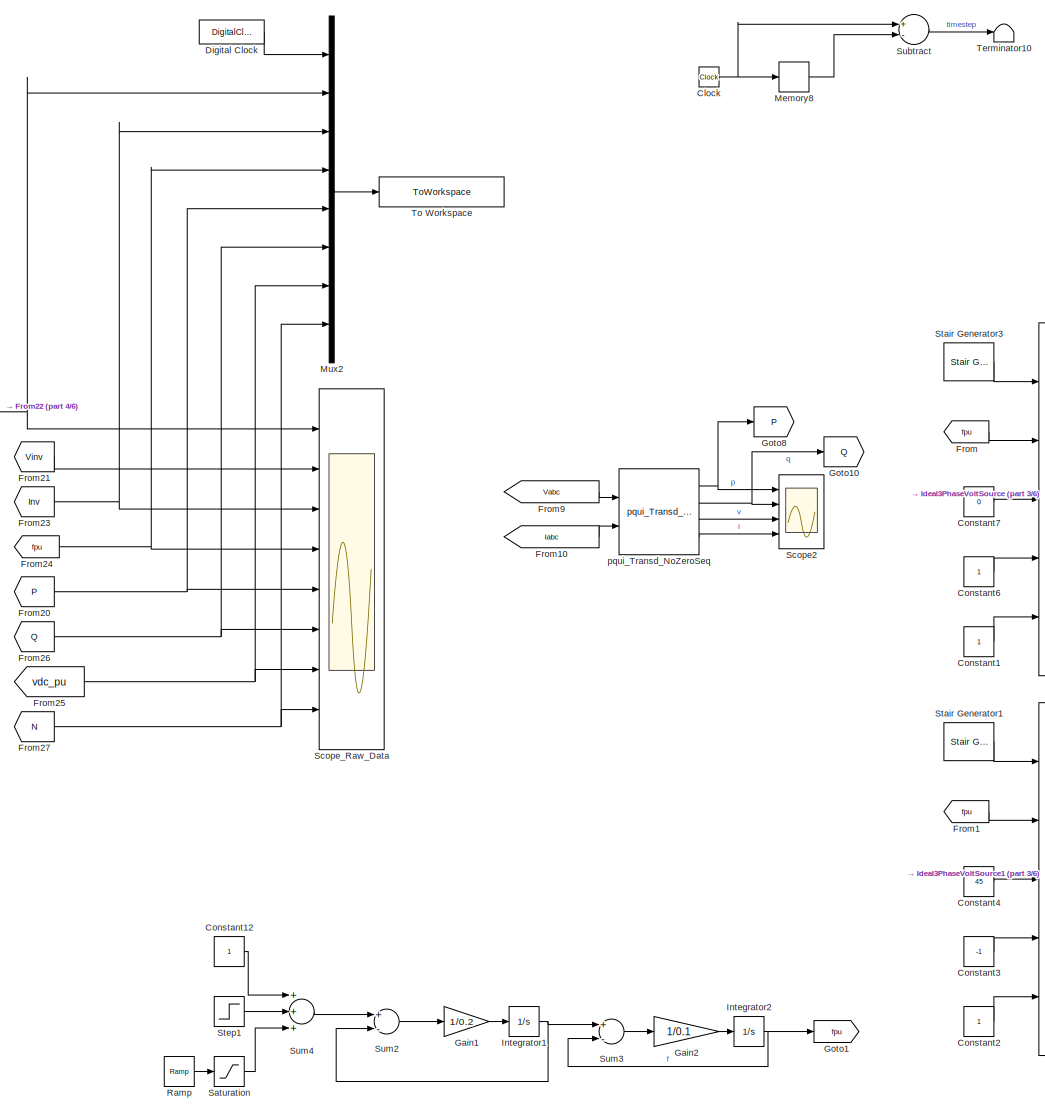
[diagram: root canvas - part 1/6, top left region]
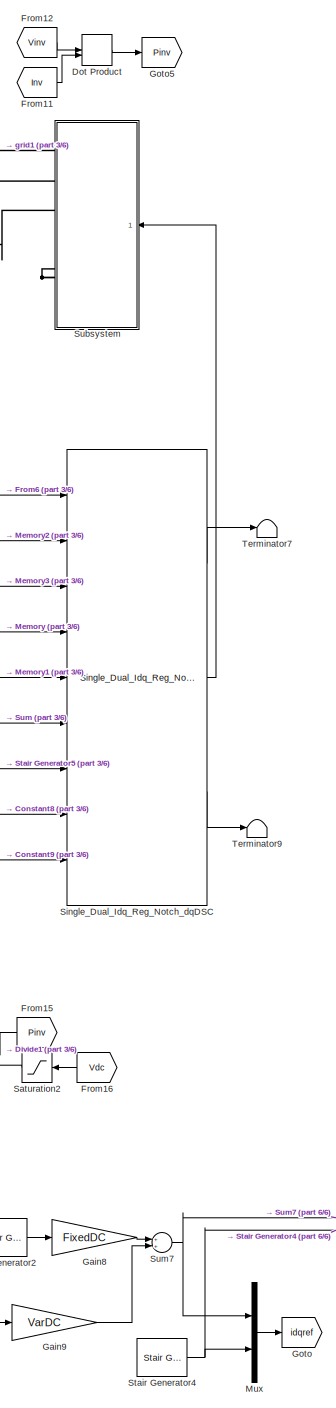
[diagram: root canvas - part 2/6, right side, full height]
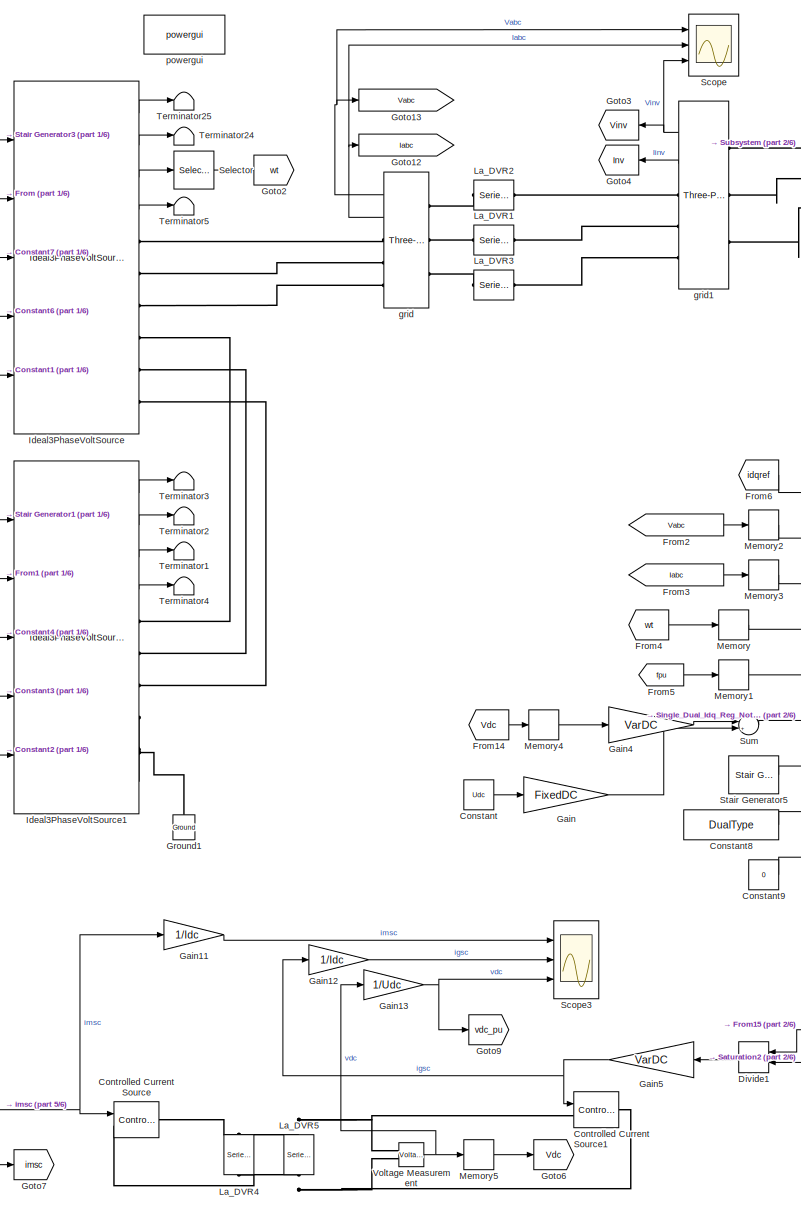
[diagram: root canvas - part 3/6, central region]
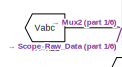
[diagram: root canvas - part 4/6, top left region]
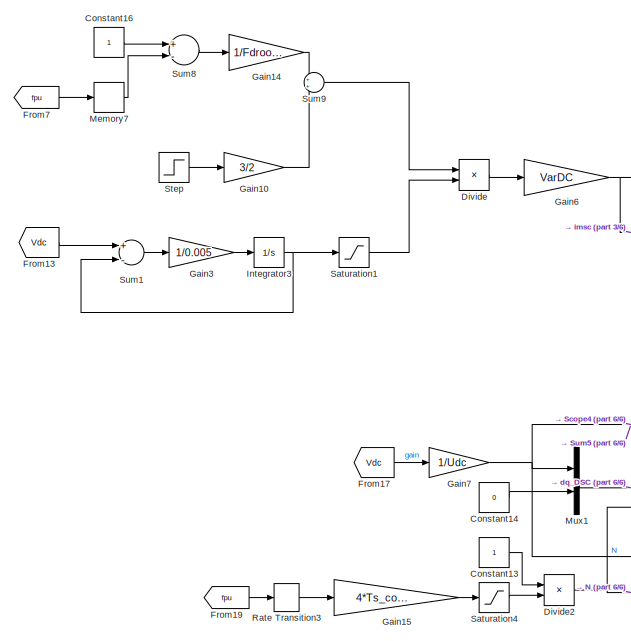
[diagram: root canvas - part 5/6, bottom left region]
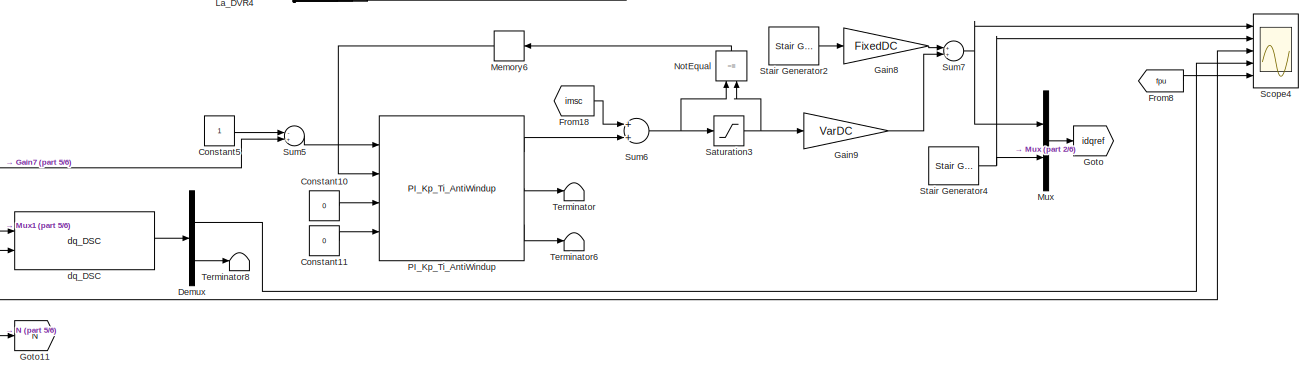
[diagram: root canvas - part 6/6, bottom right region]
MODEL slx_67183f705702
KIND model
CONFIG AbsTol = 2e-5
CONFIG EnableMultiTasking = off
CONFIG FixedStep = Ts
CONFIG MaxStep = auto
CONFIG MinStep = auto
CONFIG RelTol = 1e-3
CONFIG SampleTimeConstraint = Unconstrained
CONFIG Solver = ode8
CONFIG SolverName = ode8
CONFIG StartTime = 0.0
CONFIG StopTime = Ttot
BLOCK [Clock] Clock
  Commented = on
BLOCK [Constant] Constant
  Value = Udc
BLOCK [Constant] Constant1
BLOCK [Constant] Constant10
  Value = 0
BLOCK [Constant] Constant11
  Value = 0
BLOCK [Constant] Constant12
BLOCK [Constant] Constant13
BLOCK [Constant] Constant14
  Value = 0
BLOCK [Constant] Constant16
BLOCK [Constant] Constant2
BLOCK [Constant] Constant3
  Value = -1
BLOCK [Constant] Constant4
  Value = 45
BLOCK [Constant] Constant5
BLOCK [Constant] Constant6
BLOCK [Constant] Constant7
  Value = 0
BLOCK [Constant] Constant8
  Value = DualType
BLOCK [Constant] Constant9
  Value = 0
BLOCK [Reference] Controlled Current Source  REF=powerlib/Electrical
Sources/Controlled Current Source
  Ports = [1, 0, 0, 0, 0, 1, 1]
  SourceBlock = powerlib/Electrical\nSources/Controlled Current Source
  SourceProductBaseCode = PS
  SourceProductName = Simscape Power Systems
  SourceType = Controlled Current Source
BLOCK [Reference] Controlled Current Source1  REF=powerlib/Electrical
Sources/Controlled Current Source
  Ports = [1, 0, 0, 0, 0, 1, 1]
  SourceBlock = powerlib/Electrical\nSources/Controlled Current Source
  SourceProductBaseCode = PS
  SourceProductName = Simscape Power Systems
  SourceType = Controlled Current Source
BLOCK [Demux] Demux
  DisplayOption = bar
  Outputs = 2
  Ports = [1, 2]
BLOCK [DigitalClock] Digital Clock
  SampleTime = Ts_control
BLOCK [Product] Divide
  InputSameDT = off
  Inputs = */
  OutDataTypeStr = Inherit: Inherit via internal rule
  Ports = [2, 1]
  RndMeth = Floor
  SaturateOnIntegerOverflow = off
BLOCK [Product] Divide1
  InputSameDT = off
  Inputs = */
  OutDataTypeStr = Inherit: Inherit via internal rule
  Ports = [2, 1]
  RndMeth = Floor
  SaturateOnIntegerOverflow = off
BLOCK [Product] Divide2
  InputSameDT = off
  Inputs = */
  OutDataTypeStr = Inherit: Inherit via internal rule
  Ports = [2, 1]
  RndMeth = Floor
  SaturateOnIntegerOverflow = off
BLOCK [DotProduct] Dot Product
  OutDataTypeStr = Inherit: Inherit via internal rule
BLOCK [From] From
  GotoTag = fpu
BLOCK [From] From1
  GotoTag = fpu
BLOCK [From] From10
  GotoTag = Iabc
BLOCK [From] From11
  GotoTag = Inv
BLOCK [From] From12
  GotoTag = Vinv
BLOCK [From] From13
  GotoTag = Vdc
BLOCK [From] From14
  GotoTag = Vdc
BLOCK [From] From15
  GotoTag = Pinv
BLOCK [From] From16
  GotoTag = Vdc
BLOCK [From] From17
  GotoTag = Vdc
BLOCK [From] From18
  GotoTag = imsc
BLOCK [From] From19
  GotoTag = fpu
BLOCK [From] From2
  GotoTag = Vabc
BLOCK [From] From20
  GotoTag = P
BLOCK [From] From21
  GotoTag = Vinv
BLOCK [From] From22
  GotoTag = Vabc
BLOCK [From] From23
  GotoTag = Inv
BLOCK [From] From24
  GotoTag = fpu
BLOCK [From] From25
  GotoTag = vdc_pu
BLOCK [From] From26
  GotoTag = Q
BLOCK [From] From27
  GotoTag = N
BLOCK [From] From3
  GotoTag = Iabc
BLOCK [From] From4
  GotoTag = wt
BLOCK [From] From5
  GotoTag = fpu
BLOCK [From] From6
  GotoTag = idqref
BLOCK [From] From7
  GotoTag = fpu
BLOCK [From] From8
  GotoTag = fpu
BLOCK [From] From9
  GotoTag = Vabc
BLOCK [Gain] Gain
  Gain = FixedDC
  OutDataTypeStr = Inherit: Inherit via internal rule
  ParamDataTypeStr = Inherit: Inherit via internal rule
  SaturateOnIntegerOverflow = off
BLOCK [Gain] Gain1
  Gain = 1/0.2
  OutDataTypeStr = Inherit: Inherit via internal rule
  ParamDataTypeStr = Inherit: Inherit via internal rule
  SaturateOnIntegerOverflow = off
BLOCK [Gain] Gain10
  Gain = 3/2
  OutDataTypeStr = Inherit: Inherit via internal rule
  ParamDataTypeStr = Inherit: Inherit via internal rule
  SaturateOnIntegerOverflow = off
BLOCK [Gain] Gain11
  Gain = 1/Idc
  OutDataTypeStr = Inherit: Inherit via internal rule
  ParamDataTypeStr = Inherit: Inherit via internal rule
  SaturateOnIntegerOverflow = off
BLOCK [Gain] Gain12
  Gain = 1/Idc
  OutDataTypeStr = Inherit: Inherit via internal rule
  ParamDataTypeStr = Inherit: Inherit via internal rule
  SaturateOnIntegerOverflow = off
BLOCK [Gain] Gain13
  Gain = 1/Udc
  OutDataTypeStr = Inherit: Inherit via internal rule
  ParamDataTypeStr = Inherit: Inherit via internal rule
  SaturateOnIntegerOverflow = off
BLOCK [Gain] Gain14
  Gain = 1/Fdroop
  OutDataTypeStr = Inherit: Inherit via internal rule
  ParamDataTypeStr = Inherit: Inherit via internal rule
  SaturateOnIntegerOverflow = off
BLOCK [Gain] Gain15
  Gain = 4*Ts_control*Fn
  OutDataTypeStr = Inherit: Inherit via internal rule
  ParamDataTypeStr = Inherit: Inherit via internal rule
  SaturateOnIntegerOverflow = off
BLOCK [Gain] Gain2
  Gain = 1/0.1
  OutDataTypeStr = Inherit: Inherit via internal rule
  ParamDataTypeStr = Inherit: Inherit via internal rule
  SaturateOnIntegerOverflow = off
BLOCK [Gain] Gain3
  Gain = 1/0.005
  OutDataTypeStr = Inherit: Inherit via internal rule
  ParamDataTypeStr = Inherit: Inherit via internal rule
  SaturateOnIntegerOverflow = off
BLOCK [Gain] Gain4
  Gain = VarDC
  OutDataTypeStr = Inherit: Inherit via internal rule
  ParamDataTypeStr = Inherit: Inherit via internal rule
  SaturateOnIntegerOverflow = off
BLOCK [Gain] Gain5
  Gain = VarDC
  OutDataTypeStr = Inherit: Inherit via internal rule
  ParamDataTypeStr = Inherit: Inherit via internal rule
  SaturateOnIntegerOverflow = off
BLOCK [Gain] Gain6
  Gain = VarDC
  OutDataTypeStr = Inherit: Inherit via internal rule
  ParamDataTypeStr = Inherit: Inherit via internal rule
  SaturateOnIntegerOverflow = off
BLOCK [Gain] Gain7
  Gain = 1/Udc
  OutDataTypeStr = Inherit: Inherit via internal rule
  ParamDataTypeStr = Inherit: Inherit via internal rule
  SaturateOnIntegerOverflow = off
BLOCK [Gain] Gain8
  Gain = FixedDC
  OutDataTypeStr = Inherit: Inherit via internal rule
  ParamDataTypeStr = Inherit: Inherit via internal rule
  SaturateOnIntegerOverflow = off
BLOCK [Gain] Gain9
  Gain = VarDC
  OutDataTypeStr = Inherit: Inherit via internal rule
  ParamDataTypeStr = Inherit: Inherit via internal rule
  SaturateOnIntegerOverflow = off
BLOCK [Goto] Goto
  GotoTag = idqref
BLOCK [Goto] Goto1
  GotoTag = fpu
BLOCK [Goto] Goto10
  GotoTag = Q
BLOCK [Goto] Goto11
  GotoTag = N
BLOCK [Goto] Goto12
  GotoTag = Iabc
BLOCK [Goto] Goto13
  GotoTag = Vabc
BLOCK [Goto] Goto2
  GotoTag = wt
BLOCK [Goto] Goto3
  GotoTag = Vinv
BLOCK [Goto] Goto4
  GotoTag = Inv
BLOCK [Goto] Goto5
  GotoTag = Pinv
BLOCK [Goto] Goto6
  GotoTag = Vdc
BLOCK [Goto] Goto7
  GotoTag = imsc
BLOCK [Goto] Goto8
  GotoTag = P
BLOCK [Goto] Goto9
  GotoTag = vdc_pu
BLOCK [Reference] Ground1  REF=powerlib/Elements/Ground
  Ports = [0, 0, 0, 0, 0, 1]
  SourceBlock = powerlib/Elements/Ground
  SourceProductBaseCode = PS
  SourceProductName = Simscape Power Systems
  SourceType = Ground
BLOCK [Reference] Ideal3PhaseVoltSource  REF=DSCdq_Library/Ideal3PhaseVoltSource
  Ports = [5, 4, 0, 0, 0, 0, 6]
  SourceBlock = DSCdq_Library/Ideal3PhaseVoltSource
  SourceType = Three-phase ideal voltage source
BLOCK [Reference] Ideal3PhaseVoltSource1  REF=DSCdq_Library/Ideal3PhaseVoltSource
  Ports = [5, 4, 0, 0, 0, 0, 6]
  SourceBlock = DSCdq_Library/Ideal3PhaseVoltSource
  SourceType = Three-phase ideal voltage source
BLOCK [Integrator] Integrator1
  InitialCondition = 1
  Ports = [1, 1]
BLOCK [Integrator] Integrator2
  InitialCondition = 1
  Ports = [1, 1]
BLOCK [Integrator] Integrator3
  InitialCondition = Udc
  Ports = [1, 1]
BLOCK [Reference] La_DVR1  REF=powerlib/Elements/Series RLC Branch
  AttributesFormatString = \n
  Ports = [0, 0, 0, 0, 0, 1, 1]
  SourceBlock = powerlib/Elements/Series RLC Branch
  SourceProductBaseCode = PS
  SourceProductName = Simscape Power Systems
  SourceType = Series RLC Branch
BLOCK [Reference] La_DVR2  REF=powerlib/Elements/Series RLC Branch
  AttributesFormatString = \n
  Ports = [0, 0, 0, 0, 0, 1, 1]
  SourceBlock = powerlib/Elements/Series RLC Branch
  SourceProductBaseCode = PS
  SourceProductName = Simscape Power Systems
  SourceType = Series RLC Branch
BLOCK [Reference] La_DVR3  REF=powerlib/Elements/Series RLC Branch
  AttributesFormatString = \n
  Ports = [0, 0, 0, 0, 0, 1, 1]
  SourceBlock = powerlib/Elements/Series RLC Branch
  SourceProductBaseCode = PS
  SourceProductName = Simscape Power Systems
  SourceType = Series RLC Branch
BLOCK [Reference] La_DVR4  REF=powerlib/Elements/Series RLC Branch
  AttributesFormatString = \n
  Ports = [0, 0, 0, 0, 0, 1, 1]
  SourceBlock = powerlib/Elements/Series RLC Branch
  SourceProductBaseCode = PS
  SourceProductName = Simscape Power Systems
  SourceType = Series RLC Branch
BLOCK [Reference] La_DVR5  REF=powerlib/Elements/Series RLC Branch
  AttributesFormatString = \n
  Ports = [0, 0, 0, 0, 0, 1, 1]
  SourceBlock = powerlib/Elements/Series RLC Branch
  SourceProductBaseCode = PS
  SourceProductName = Simscape Power Systems
  SourceType = Series RLC Branch
BLOCK [Memory] Memory
BLOCK [Memory] Memory1
  InitialCondition = 1
BLOCK [Memory] Memory2
BLOCK [Memory] Memory3
BLOCK [Memory] Memory4
BLOCK [Memory] Memory5
  InitialCondition = 1
BLOCK [Memory] Memory6
BLOCK [Memory] Memory7
  InitialCondition = 1
BLOCK [Memory] Memory8
  Commented = on
BLOCK [Mux] Mux
  DisplayOption = bar
  Inputs = 2
  Ports = [2, 1]
BLOCK [Mux] Mux1
  DisplayOption = bar
  Inputs = 2
  Ports = [2, 1]
BLOCK [Mux] Mux2
  DisplayOption = bar
  Inputs = 8
  Ports = [8, 1]
BLOCK [RelationalOperator] NotEqual
  InputSameDT = off
  Operator = ~=
  OutDataTypeStr = boolean
  Ports = [2, 1]
  RndMeth = Simplest
BLOCK [Reference] PI_Kp_Ti_AntiWindup  REF=DSCdq_Library/PI_Kp_Ti_AntiWindup
  Ports = [4, 3]
  SourceBlock = DSCdq_Library/PI_Kp_Ti_AntiWindup
  SourceType = PI regulator with anti-windup
BLOCK [Reference] Ramp  REF=simulink/Sources/Ramp
  Ports = [0, 1]
  SourceBlock = simulink/Sources/Ramp
  SourceProductBaseCode = SL
  SourceProductName = Simulink
  SourceType = Ramp
BLOCK [RateTransition] Rate Transition3
  InitialCondition = 1
  OutPortSampleTime = Ts_control
BLOCK [Saturate] Saturation
  InputPortMap = u0
  LowerLimit = -abs(Fdrop)
  Ports = [1, 1]
  UpperLimit = abs(Fdrop)
BLOCK [Saturate] Saturation1
  InputPortMap = u0
  LowerLimit = 1e-6
  Ports = [1, 1]
  UpperLimit = Inf
BLOCK [Saturate] Saturation2
  InputPortMap = u0
  LowerLimit = 1e-6
  Ports = [1, 1]
  UpperLimit = Inf
BLOCK [Saturate] Saturation3
  InputPortMap = u0
  LowerLimit = -1.5
  Ports = [1, 1]
  UpperLimit = 1.5
BLOCK [Saturate] Saturation4
  InputPortMap = u0
  LowerLimit = 0.000001
  Ports = [1, 1]
  UpperLimit = inf
BLOCK [Scope] Scope
  Commented = on
  Floating = off
  NumInputPorts = 3
  Ports = [3]
  ScopeSpecificationString = Simulink.scopes.TimeScopeBlockCfg('CurrentConfiguration', extmgr.ConfigurationSet(extmgr.Configuration('Core','General UI',true),extmgr.Configuration('Core','Source UI',true),extmgr.Configuration('Sources','WiredSimulink',true),extmgr.Configuration('Visuals','Time Domain',true,'SerializedDisplays',{struct('MinYLimReal','-1.3413','MaxYLimReal','1.3413','YLabelReal','','MinYLimMag','0.00000','MaxYLi...<+2847ch>
BLOCK [Scope] Scope2
  Commented = on
  Floating = off
  NumInputPorts = 4
  Ports = [4]
  ScopeSpecificationString = Simulink.scopes.TimeScopeBlockCfg('CurrentConfiguration', extmgr.ConfigurationSet(extmgr.Configuration('Core','General UI',true),extmgr.Configuration('Core','Source UI',true),extmgr.Configuration('Sources','WiredSimulink',true,'DataLoggingVariableName','ScopeData2'),extmgr.Configuration('Visuals','Time Domain',true,'SerializedDisplays',{struct('MinYLimReal','-0.23045','MaxYLimReal','0.34177','YLab...<+3493ch>
BLOCK [Scope] Scope3
  Commented = on
  Floating = off
  NumInputPorts = 3
  Ports = [3]
  ScopeSpecificationString = Simulink.scopes.TimeScopeBlockCfg('CurrentConfiguration', extmgr.ConfigurationSet(extmgr.Configuration('Core','General UI',true),extmgr.Configuration('Core','Source UI',true),extmgr.Configuration('Sources','WiredSimulink',true,'DataLoggingVariableName','ScopeData3'),extmgr.Configuration('Visuals','Time Domain',true,'SerializedDisplays',{struct('MinYLimReal','-0.67968','MaxYLimReal','3.40497','YLab...<+1786ch>
BLOCK [Scope] Scope4
  Commented = on
  Floating = off
  NumInputPorts = 5
  Ports = [5]
  ScopeSpecificationString = Simulink.scopes.TimeScopeBlockCfg('CurrentConfiguration', extmgr.ConfigurationSet(extmgr.Configuration('Core','General UI',true),extmgr.Configuration('Core','Source UI',true),extmgr.Configuration('Sources','WiredSimulink',true,'DataLoggingVariableName','ScopeData4'),extmgr.Configuration('Visuals','Time Domain',true,'SerializedDisplays',{struct('MinYLimReal','0.98363','MaxYLimReal','1.06577','YLabe...<+1646ch>
BLOCK [Scope] Scope_Raw_Data
  Floating = off
  NumInputPorts = 8
  Ports = [8]
  ScopeSpecificationString = Simulink.scopes.TimeScopeBlockCfg('CurrentConfiguration', extmgr.ConfigurationSet(extmgr.Configuration('Core','General UI',true),extmgr.Configuration('Core','Source UI',true),extmgr.Configuration('Sources','WiredSimulink',true,'DataLoggingVariableName','ScopeData1','SampleTime','Ts_control'),extmgr.Configuration('Visuals','Time Domain',true,'SerializedDisplays',{struct('MinYLimReal','-1.25','MaxYL...<+6362ch>
BLOCK [Selector] Selector
  IndexOptions = Index vector (dialog)
  Indices = [1]
  InputPortWidth = 3
  OutputSizes = 1
  Ports = [1, 1]
BLOCK [Reference] Single_Dual_Idq_Reg_Notch_dqDSC  REF=DSCdq_Library/Single_Dual_Idq_Reg_Notch_dqDSC
  Ports = [9, 3]
  SourceBlock = DSCdq_Library/Single_Dual_Idq_Reg_Notch_dqDSC
  SourceType = Notch based dual dq current regulator
BLOCK [Reference] Stair Generator1  REF=powerlib_meascontrol/Pulse & Signal
Generators/Stair
Generator
  Ports = [0, 1]
  SourceBlock = powerlib_meascontrol/Pulse & Signal\nGenerators/Stair\nGenerator
  SourceProductBaseCode = PS
  SourceProductName = Simscape Power Systems
  SourceType = Stair Generator
BLOCK [Reference] Stair Generator2  REF=powerlib_meascontrol/Pulse & Signal
Generators/Stair
Generator
  Ports = [0, 1]
  SourceBlock = powerlib_meascontrol/Pulse & Signal\nGenerators/Stair\nGenerator
  SourceProductBaseCode = PS
  SourceProductName = Simscape Power Systems
  SourceType = Stair Generator
BLOCK [Reference] Stair Generator3  REF=powerlib_meascontrol/Pulse & Signal
Generators/Stair
Generator
  Ports = [0, 1]
  SourceBlock = powerlib_meascontrol/Pulse & Signal\nGenerators/Stair\nGenerator
  SourceProductBaseCode = PS
  SourceProductName = Simscape Power Systems
  SourceType = Stair Generator
BLOCK [Reference] Stair Generator4  REF=powerlib_meascontrol/Pulse & Signal
Generators/Stair
Generator
  Ports = [0, 1]
  SourceBlock = powerlib_meascontrol/Pulse & Signal\nGenerators/Stair\nGenerator
  SourceProductBaseCode = PS
  SourceProductName = Simscape Power Systems
  SourceType = Stair Generator
BLOCK [Reference] Stair Generator5  REF=powerlib_meascontrol/Pulse & Signal
Generators/Stair
Generator
  Ports = [0, 1]
  SourceBlock = powerlib_meascontrol/Pulse & Signal\nGenerators/Stair\nGenerator
  SourceProductBaseCode = PS
  SourceProductName = Simscape Power Systems
  SourceType = Stair Generator
BLOCK [Step] Step
  After = PdcFinVal
  Before = PdcIniVal
  SampleTime = 0
  Time = PdcStepTime
BLOCK [Step] Step1
  After = -Fdrop
  SampleTime = 0
  Time = Fdroptime
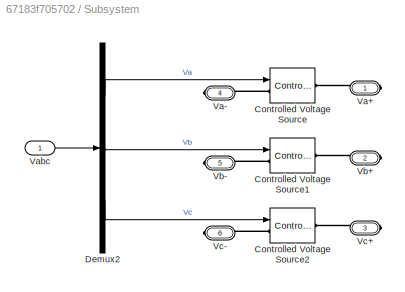
BLOCK [SubSystem] Subsystem
  Ports = [1, 0, 0, 0, 0, 0, 6]
  RequestExecContextInheritance = off
BLOCK [Reference] Subsystem/Controlled Voltage Source  REF=powerlib/Electrical
Sources/Controlled Voltage Source
  Ports = [1, 0, 0, 0, 0, 1, 1]
  SourceBlock = powerlib/Electrical\nSources/Controlled Voltage Source
  SourceProductBaseCode = PS
  SourceProductName = Simscape Power Systems
  SourceType = Controlled Voltage Source
BLOCK [Reference] Subsystem/Controlled Voltage Source1  REF=powerlib/Electrical
Sources/Controlled Voltage Source
  Ports = [1, 0, 0, 0, 0, 1, 1]
  SourceBlock = powerlib/Electrical\nSources/Controlled Voltage Source
  SourceProductBaseCode = PS
  SourceProductName = Simscape Power Systems
  SourceType = Controlled Voltage Source
BLOCK [Reference] Subsystem/Controlled Voltage Source2  REF=powerlib/Electrical
Sources/Controlled Voltage Source
  Ports = [1, 0, 0, 0, 0, 1, 1]
  SourceBlock = powerlib/Electrical\nSources/Controlled Voltage Source
  SourceProductBaseCode = PS
  SourceProductName = Simscape Power Systems
  SourceType = Controlled Voltage Source
BLOCK [Demux] Subsystem/Demux2
  DisplayOption = bar
  Outputs = 3
  Ports = [1, 3]
BLOCK [PMIOPort] Subsystem/Va+
  Side = Right
BLOCK [PMIOPort] Subsystem/Va-
  Port = 4
  Side = Right
BLOCK [Inport] Subsystem/Vabc
  IconDisplay = Port number
BLOCK [PMIOPort] Subsystem/Vb+
  Port = 2
  Side = Right
BLOCK [PMIOPort] Subsystem/Vb-
  Port = 5
  Side = Right
BLOCK [PMIOPort] Subsystem/Vc+
  Port = 3
  Side = Right
BLOCK [PMIOPort] Subsystem/Vc-
  Port = 6
  Side = Right
BLOCK [Sum] Subtract
  Commented = on
  InputSameDT = off
  Inputs = +-
  OutDataTypeStr = Inherit: Inherit via internal rule
  Ports = [2, 1]
  SaturateOnIntegerOverflow = off
BLOCK [Sum] Sum
  IconShape = round
  InputSameDT = off
  Inputs = |++
  OutDataTypeStr = Inherit: Inherit via internal rule
  Ports = [2, 1]
  SaturateOnIntegerOverflow = off
BLOCK [Sum] Sum1
  InputSameDT = off
  Inputs = +-
  OutDataTypeStr = Inherit: Inherit via internal rule
  Ports = [2, 1]
  SaturateOnIntegerOverflow = off
BLOCK [Sum] Sum2
  InputSameDT = off
  Inputs = +-
  OutDataTypeStr = Inherit: Inherit via internal rule
  Ports = [2, 1]
  SaturateOnIntegerOverflow = off
BLOCK [Sum] Sum3
  InputSameDT = off
  Inputs = +-
  OutDataTypeStr = Inherit: Inherit via internal rule
  Ports = [2, 1]
  SaturateOnIntegerOverflow = off
BLOCK [Sum] Sum4
  InputSameDT = off
  Inputs = +++
  OutDataTypeStr = Inherit: Inherit via internal rule
  Ports = [3, 1]
  SaturateOnIntegerOverflow = off
BLOCK [Sum] Sum5
  InputSameDT = off
  Inputs = -+
  OutDataTypeStr = Inherit: Inherit via internal rule
  Ports = [2, 1]
  SaturateOnIntegerOverflow = off
BLOCK [Sum] Sum6
  InputSameDT = off
  OutDataTypeStr = Inherit: Inherit via internal rule
  Ports = [2, 1]
  SaturateOnIntegerOverflow = off
BLOCK [Sum] Sum7
  InputSameDT = off
  OutDataTypeStr = Inherit: Inherit via internal rule
  Ports = [2, 1]
  SaturateOnIntegerOverflow = off
BLOCK [Sum] Sum8
  InputSameDT = off
  Inputs = +-
  OutDataTypeStr = Inherit: Inherit via internal rule
  Ports = [2, 1]
  SaturateOnIntegerOverflow = off
BLOCK [Sum] Sum9
  IconShape = round
  InputSameDT = off
  OutDataTypeStr = Inherit: Inherit via internal rule
  Ports = [2, 1]
  SaturateOnIntegerOverflow = off
BLOCK [Terminator] Terminator
BLOCK [Terminator] Terminator1
BLOCK [Terminator] Terminator10
  Commented = on
BLOCK [Terminator] Terminator2
BLOCK [Terminator] Terminator24
BLOCK [Terminator] Terminator25
BLOCK [Terminator] Terminator3
BLOCK [Terminator] Terminator4
BLOCK [Terminator] Terminator5
BLOCK [Terminator] Terminator6
BLOCK [Terminator] Terminator7
BLOCK [Terminator] Terminator8
BLOCK [Terminator] Terminator9
BLOCK [ToWorkspace] To Workspace
  FixptAsFi = on
  MaxDataPoints = inf
  Ports = [1]
  SampleTime = Ts_control
  Save2DSignal = 3-D array (concatenate along third dimension)
  VariableName = Application_Raw
BLOCK [Reference] Voltage Measurement  REF=powerlib/Measurements/Voltage Measurement
  Ports = [0, 1, 0, 0, 0, 2]
  SourceBlock = powerlib/Measurements/Voltage Measurement
  SourceProductBaseCode = PS
  SourceProductName = Simscape Power Systems
  SourceType = Voltage Measurement
  UserDataPersistent = on
BLOCK [Reference] dq_DSC  REF=DSCdq_Library/dq_DSC
  Ports = [2, 1]
  SourceBlock = DSCdq_Library/dq_DSC
BLOCK [Reference] grid  REF=powerlib/Measurements/Three-Phase
V-I Measurement
  Ports = [0, 2, 0, 0, 0, 3, 3]
  SourceBlock = powerlib/Measurements/Three-Phase\nV-I Measurement
  SourceProductBaseCode = PS
  SourceProductName = Simscape Power Systems
  SourceType = Three-Phase VI Measurement
BLOCK [Reference] grid1  REF=powerlib/Measurements/Three-Phase
V-I Measurement
  Ports = [0, 2, 0, 0, 0, 3, 3]
  SourceBlock = powerlib/Measurements/Three-Phase\nV-I Measurement
  SourceProductBaseCode = PS
  SourceProductName = Simscape Power Systems
  SourceType = Three-Phase VI Measurement
BLOCK [Reference] powergui  REF=powerlib/powergui
  Ports = []
  Priority = 1
  SourceBlock = powerlib/powergui
  SourceProductBaseCode = PS
  SourceProductName = Simscape Power Systems
  SourceType = PSB option menu block
BLOCK [Reference] pqui_Transd_NoZeroSeq  REF=DSCdq_Library/pqui_Transd_NoZeroSeq
  Ports = [2, 4]
  SourceBlock = DSCdq_Library/pqui_Transd_NoZeroSeq
  SourceType = u i p q transducer - No zero sequence
NET Clock:1 -> Memory8:1, Subtract:1
LINE Constant10:1 -> PI_Kp_Ti_AntiWindup:3
LINE Constant11:1 -> PI_Kp_Ti_AntiWindup:4
LINE Constant12:1 -> Sum4:1
LINE Constant13:1 -> Divide2:1
LINE Constant14:1 -> Mux1:2
LINE Constant16:1 -> Sum8:1
LINE Constant1:1 -> Ideal3PhaseVoltSource:5
LINE Constant2:1 -> Ideal3PhaseVoltSource1:5
LINE Constant3:1 -> Ideal3PhaseVoltSource1:4
LINE Constant4:1 -> Ideal3PhaseVoltSource1:3
LINE Constant5:1 -> Sum5:1
LINE Constant6:1 -> Ideal3PhaseVoltSource:4
LINE Constant7:1 -> Ideal3PhaseVoltSource:3
LINE Constant8:1 -> Single_Dual_Idq_Reg_Notch_dqDSC:8
LINE Constant9:1 -> Single_Dual_Idq_Reg_Notch_dqDSC:9
LINE Constant:1 -> Gain:1
LINE Demux:1 -> Scope4:4
LINE Demux:2 -> Terminator8:1
LINE Digital Clock:1 -> Mux2:1
LINE Divide1:1 -> Gain5:1
NET Divide2:1 -> Goto11:1, dq_DSC:2
LINE Divide:1 -> Gain6:1
LINE Dot Product:1 -> Goto5:1
LINE From10:1 -> pqui_Transd_NoZeroSeq:2
LINE From11:1 -> Dot Product:2
LINE From12:1 -> Dot Product:1
LINE From13:1 -> Sum1:1
LINE From14:1 -> Memory4:1
LINE From15:1 -> Divide1:1
LINE From16:1 -> Saturation2:1
LINE From17:1 -> Gain7:1
LINE From18:1 -> Sum6:1
LINE From19:1 -> Rate Transition3:1
LINE From1:1 -> Ideal3PhaseVoltSource1:2
NET From20:1 -> Mux2:5, Scope_Raw_Data:5
LINE From21:1 -> Scope_Raw_Data:2
NET From22:1 -> Mux2:2, Scope_Raw_Data:1
NET From23:1 -> Mux2:3, Scope_Raw_Data:3
NET From24:1 -> Mux2:4, Scope_Raw_Data:4
NET From25:1 -> Mux2:7, Scope_Raw_Data:7
NET From26:1 -> Mux2:6, Scope_Raw_Data:6
NET From27:1 -> Mux2:8, Scope_Raw_Data:8
LINE From2:1 -> Memory2:1
LINE From3:1 -> Memory3:1
LINE From4:1 -> Memory:1
LINE From5:1 -> Memory1:1
LINE From6:1 -> Single_Dual_Idq_Reg_Notch_dqDSC:1
LINE From7:1 -> Memory7:1
LINE From8:1 -> Scope4:5
LINE From9:1 -> pqui_Transd_NoZeroSeq:1
LINE From:1 -> Ideal3PhaseVoltSource:2
LINE Gain10:1 -> Sum9:2
LINE Gain11:1 -> Scope3:1
LINE Gain12:1 -> Scope3:2
NET Gain13:1 -> Goto9:1, Scope3:3
LINE Gain14:1 -> Sum9:1
LINE Gain15:1 -> Saturation4:1
LINE Gain1:1 -> Integrator1:1
LINE Gain2:1 -> Integrator2:1
LINE Gain3:1 -> Integrator3:1
LINE Gain4:1 -> Sum:1
NET Gain5:1 -> Controlled Current Source1:1, Gain12:1
NET Gain6:1 -> Controlled Current Source:1, Gain11:1, Goto7:1
NET Gain7:1 -> Mux1:1, Scope4:3, Sum5:2
LINE Gain8:1 -> Sum7:1
LINE Gain9:1 -> Sum7:2
LINE Gain:1 -> Sum:2
LINE Ideal3PhaseVoltSource1:1 -> Terminator3:1
LINE Ideal3PhaseVoltSource1:2 -> Terminator2:1
LINE Ideal3PhaseVoltSource1:3 -> Terminator1:1
LINE Ideal3PhaseVoltSource1:4 -> Terminator4:1
LINE Ideal3PhaseVoltSource:1 -> Terminator25:1
LINE Ideal3PhaseVoltSource:2 -> Terminator24:1
LINE Ideal3PhaseVoltSource:3 -> Selector:1
LINE Ideal3PhaseVoltSource:4 -> Terminator5:1
NET Integrator1:1 -> Sum2:2, Sum3:1
NET Integrator2:1 -> Goto1:1, Sum3:2
NET Integrator3:1 -> Saturation1:1, Sum1:2
LINE Memory1:1 -> Single_Dual_Idq_Reg_Notch_dqDSC:5
LINE Memory2:1 -> Single_Dual_Idq_Reg_Notch_dqDSC:2
LINE Memory3:1 -> Single_Dual_Idq_Reg_Notch_dqDSC:3
LINE Memory4:1 -> Gain4:1
LINE Memory5:1 -> Goto6:1
LINE Memory6:1 -> PI_Kp_Ti_AntiWindup:2
LINE Memory7:1 -> Sum8:2
LINE Memory8:1 -> Subtract:2
LINE Memory:1 -> Single_Dual_Idq_Reg_Notch_dqDSC:4
LINE Mux1:1 -> dq_DSC:1
LINE Mux2:1 -> To Workspace:1
LINE Mux:1 -> Goto:1
LINE NotEqual:1 -> Memory6:1
LINE PI_Kp_Ti_AntiWindup:1 -> Sum6:2
LINE PI_Kp_Ti_AntiWindup:2 -> Terminator:1
LINE PI_Kp_Ti_AntiWindup:3 -> Terminator6:1
LINE Ramp:1 -> Saturation:1
LINE Rate Transition3:1 -> Gain15:1
LINE Saturation1:1 -> Divide:2
LINE Saturation2:1 -> Divide1:2
NET Saturation3:1 -> Gain9:1, NotEqual:2
LINE Saturation4:1 -> Divide2:2
LINE Saturation:1 -> Sum4:3
LINE Selector:1 -> Goto2:1
LINE Single_Dual_Idq_Reg_Notch_dqDSC:1 -> Terminator7:1
LINE Single_Dual_Idq_Reg_Notch_dqDSC:2 -> Subsystem:1
LINE Single_Dual_Idq_Reg_Notch_dqDSC:3 -> Terminator9:1
LINE Stair Generator1:1 -> Ideal3PhaseVoltSource1:1
LINE Stair Generator2:1 -> Gain8:1
LINE Stair Generator3:1 -> Ideal3PhaseVoltSource:1
NET Stair Generator4:1 -> Mux:2, Scope4:2
LINE Stair Generator5:1 -> Single_Dual_Idq_Reg_Notch_dqDSC:7
LINE Step1:1 -> Sum4:2
LINE Step:1 -> Gain10:1
LINE Subsystem/Demux2:1 -> Subsystem/Controlled Voltage Source:1
LINE Subsystem/Demux2:2 -> Subsystem/Controlled Voltage Source1:1
LINE Subsystem/Demux2:3 -> Subsystem/Controlled Voltage Source2:1
LINE Subsystem/Vabc:1 -> Subsystem/Demux2:1
LINE Subtract:1 -> Terminator10:1
LINE Sum1:1 -> Gain3:1
LINE Sum2:1 -> Gain1:1
LINE Sum3:1 -> Gain2:1
LINE Sum4:1 -> Sum2:1
LINE Sum5:1 -> PI_Kp_Ti_AntiWindup:1
NET Sum6:1 -> NotEqual:1, Saturation3:1
NET Sum7:1 -> Mux:1, Scope4:1
LINE Sum8:1 -> Gain14:1
LINE Sum9:1 -> Divide:1
LINE Sum:1 -> Single_Dual_Idq_Reg_Notch_dqDSC:6
NET Voltage Measurement:1 -> Gain13:1, Memory5:1
LINE dq_DSC:1 -> Demux:1
NET grid1:1 -> Goto3:1, Scope:3
LINE grid1:2 -> Goto4:1
NET grid:1 -> Goto13:1, Scope:1
NET grid:2 -> Goto12:1, Scope:2
NET pqui_Transd_NoZeroSeq:1 -> Goto8:1, Scope2:1
NET pqui_Transd_NoZeroSeq:2 -> Goto10:1, Scope2:2
LINE pqui_Transd_NoZeroSeq:3 -> Scope2:3
LINE pqui_Transd_NoZeroSeq:4 -> Scope2:4
PNET net1: Controlled Current Source1:LConn1 -- Controlled Current Source:RConn1 -- La_DVR4:LConn1 -- La_DVR5:LConn1 -- Voltage Measurement:LConn1
PNET net2: Controlled Current Source1:RConn1 -- Controlled Current Source:LConn1 -- La_DVR4:RConn1 -- La_DVR5:RConn1 -- Voltage Measurement:LConn2
PNET net3: Ground1:LConn1 -- Ideal3PhaseVoltSource1:RConn4 -- Ideal3PhaseVoltSource1:RConn5 -- Ideal3PhaseVoltSource1:RConn6
PLINE Ideal3PhaseVoltSource1:RConn1 -- Ideal3PhaseVoltSource:RConn4
PLINE Ideal3PhaseVoltSource1:RConn2 -- Ideal3PhaseVoltSource:RConn5
PLINE Ideal3PhaseVoltSource1:RConn3 -- Ideal3PhaseVoltSource:RConn6
PLINE Ideal3PhaseVoltSource:RConn1 -- grid:RConn1
PLINE Ideal3PhaseVoltSource:RConn2 -- grid:RConn2
PLINE Ideal3PhaseVoltSource:RConn3 -- grid:RConn3
PLINE La_DVR1:LConn1 -- grid1:RConn2
PLINE La_DVR1:RConn1 -- grid:LConn2
PLINE La_DVR2:LConn1 -- grid1:RConn1
PLINE La_DVR2:RConn1 -- grid:LConn1
PLINE La_DVR3:LConn1 -- grid1:RConn3
PLINE La_DVR3:RConn1 -- grid:LConn3
PLINE Subsystem/Controlled Voltage Source1:LConn1 -- Subsystem/Vb-:RConn1
PLINE Subsystem/Controlled Voltage Source1:RConn1 -- Subsystem/Vb+:RConn1
PLINE Subsystem/Controlled Voltage Source2:LConn1 -- Subsystem/Vc-:RConn1
PLINE Subsystem/Controlled Voltage Source2:RConn1 -- Subsystem/Vc+:RConn1
PLINE Subsystem/Controlled Voltage Source:LConn1 -- Subsystem/Va-:RConn1
PLINE Subsystem/Controlled Voltage Source:RConn1 -- Subsystem/Va+:RConn1
PLINE Subsystem:RConn1 -- grid1:LConn1
PLINE Subsystem:RConn2 -- grid1:LConn2
PLINE Subsystem:RConn3 -- grid1:LConn3
PNET net4: Subsystem:RConn4 -- Subsystem:RConn5 -- Subsystem:RConn6
note: NET lines group one-source signal fan-out (src -> all destinations, sorted); 1:1 wires keep LINE; PNET lines group multi-terminal physical nets as a canonical sorted terminal list (undirected conserving connections); 2-terminal nets keep the pairwise PLINE form
